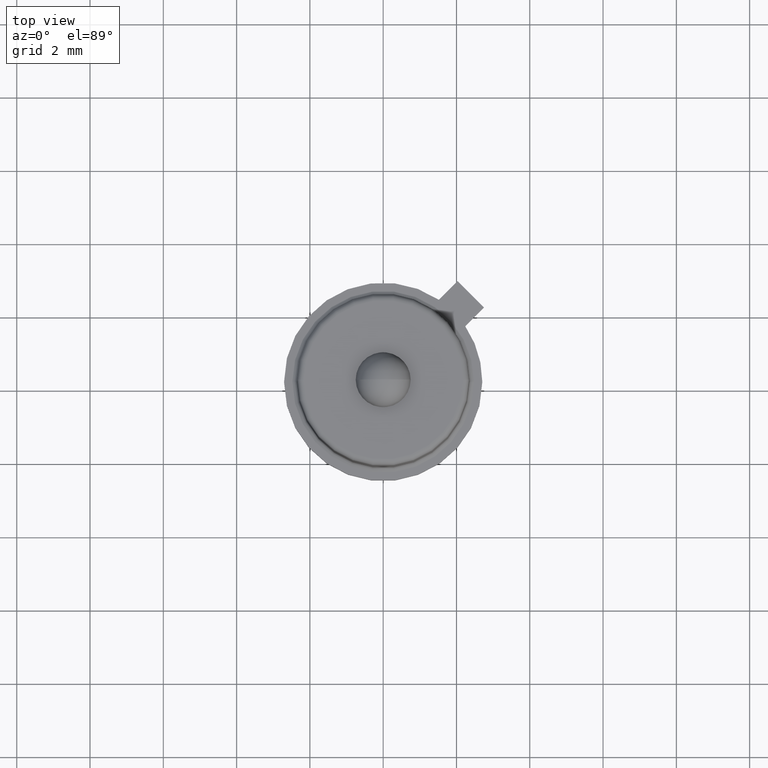
[diagram: clean part render]
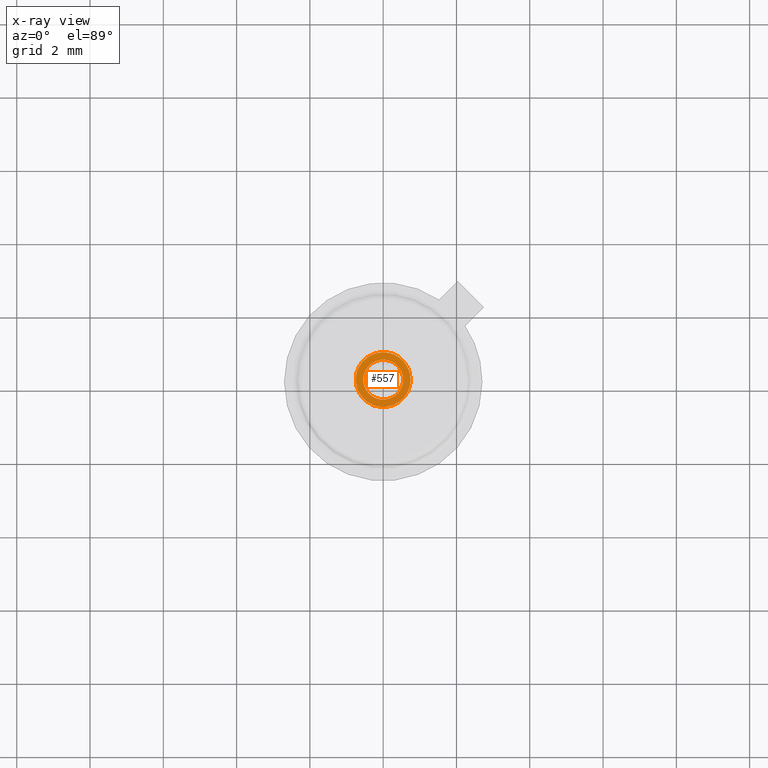
[diagram: x-ray — body ghosted, one internal face saturated and labeled with its STEP entity id]
A machine part, top view, then the same camera in x-ray: the body is ghosted and one INTERNAL B-rep face — a face not visible from any outside direction — is saturated and labeled: STEP entity #557.
In plain terms, the highlighted planar face has unit normal (-0, 0, -1).
Its self-contained STEP definition (entity closure, byte-faithful):
#145 = ORIENTED_EDGE ( 'NONE', *, *, #623, .T. ) ;
#146 = ORIENTED_EDGE ( 'NONE', *, *, #624, .T. ) ;
#147 = ORIENTED_EDGE ( 'NONE', *, *, #625, .F. ) ;
#148 = ORIENTED_EDGE ( 'NONE', *, *, #620, .F. ) ;
#197 = VERTEX_POINT ( 'NONE', #1478 ) ;
#200 = VERTEX_POINT ( 'NONE', #1480 ) ;
#201 = VERTEX_POINT ( 'NONE', #1463 ) ;
#202 = VERTEX_POINT ( 'NONE', #1553 ) ;
#247 = EDGE_LOOP ( 'NONE', ( #145, #146 ) ) ;
#251 = EDGE_LOOP ( 'NONE', ( #147, #148 ) ) ;
#316 = PLANE ( 'NONE',  #680 ) ;
#320 = CARTESIAN_POINT ( 'NONE',  ( -0.02141216404828733000, 0.0000000000000000000, 0.1479999959614064500 ) ) ;
#325 = DIRECTION ( 'NONE',  ( -1.822692633619053300E-032, 0.0000000000000000000, -1.000000000000000000 ) ) ;
#326 = DIRECTION ( 'NONE',  ( -1.000000000000000000, 0.0000000000000000000, 1.822692633619053300E-032 ) ) ;
#557 = ADVANCED_FACE ( 'NONE', ( #1448, #1461 ), #316, .T. ) ;
#620 = EDGE_CURVE ( 'NONE', #201, #197, #1289, .T. ) ;
#623 = EDGE_CURVE ( 'NONE', #200, #202, #1292, .T. ) ;
#624 = EDGE_CURVE ( 'NONE', #202, #200, #1293, .T. ) ;
#625 = EDGE_CURVE ( 'NONE', #197, #201, #1295, .T. ) ;
#680 = AXIS2_PLACEMENT_3D ( 'NONE', #320, #325, #326 ) ;
#951 = AXIS2_PLACEMENT_3D ( 'NONE', #1144, #1145, #1146 ) ;
#954 = AXIS2_PLACEMENT_3D ( 'NONE', #1153, #1154, #1155 ) ;
#955 = AXIS2_PLACEMENT_3D ( 'NONE', #1156, #1157, #1158 ) ;
#956 = AXIS2_PLACEMENT_3D ( 'NONE', #1161, #1162, #1163 ) ;
#1144 = CARTESIAN_POINT ( 'NONE',  ( -3.112074508886777000E-049, 0.0000000000000000000, 0.1479999959614064500 ) ) ;
#1145 = DIRECTION ( 'NONE',  ( -1.822692633619053300E-032, -0.0000000000000000000, -1.000000000000000000 ) ) ;
#1146 = DIRECTION ( 'NONE',  ( -1.000000000000000000, 0.0000000000000000000, 0.0000000000000000000 ) ) ;
#1153 = CARTESIAN_POINT ( 'NONE',  ( -9.800514888115017100E-066, 0.0000000000000000000, 0.1479999959614064800 ) ) ;
#1154 = DIRECTION ( 'NONE',  ( -1.822692633619053300E-032, -0.0000000000000000000, -1.000000000000000000 ) ) ;
#1155 = DIRECTION ( 'NONE',  ( -1.000000000000000000, 0.0000000000000000000, 0.0000000000000000000 ) ) ;
#1156 = CARTESIAN_POINT ( 'NONE',  ( -9.800514888115017100E-066, 0.0000000000000000000, 0.1479999959614064800 ) ) ;
#1157 = DIRECTION ( 'NONE',  ( -1.822692633619053300E-032, -0.0000000000000000000, -1.000000000000000000 ) ) ;
#1158 = DIRECTION ( 'NONE',  ( -1.000000000000000000, 0.0000000000000000000, 0.0000000000000000000 ) ) ;
#1161 = CARTESIAN_POINT ( 'NONE',  ( -3.112074508886777000E-049, 0.0000000000000000000, 0.1479999959614064500 ) ) ;
#1162 = DIRECTION ( 'NONE',  ( -1.822692633619053300E-032, -0.0000000000000000000, -1.000000000000000000 ) ) ;
#1163 = DIRECTION ( 'NONE',  ( -1.000000000000000000, 0.0000000000000000000, 0.0000000000000000000 ) ) ;
#1289 = CIRCLE ( 'NONE', #951, 0.02141216404828733000 ) ;
#1292 = CIRCLE ( 'NONE', #954, 0.02949999999999998500 ) ;
#1293 = CIRCLE ( 'NONE', #955, 0.02949999999999998500 ) ;
#1295 = CIRCLE ( 'NONE', #956, 0.02141216404828733000 ) ;
#1448 = FACE_OUTER_BOUND ( 'NONE', #247, .T. ) ;
#1461 = FACE_BOUND ( 'NONE', #251, .T. ) ;
#1463 = CARTESIAN_POINT ( 'NONE',  ( -0.02141216404828733000, -2.622233816455311600E-018, 0.1479999959614064500 ) ) ;
#1478 = CARTESIAN_POINT ( 'NONE',  ( 0.02141216404828733000, 0.0000000000000000000, 0.1479999959614064500 ) ) ;
#1480 = CARTESIAN_POINT ( 'NONE',  ( -0.02949999999999997800, 0.0000000000000000000, 0.1479999959614064800 ) ) ;
#1553 = CARTESIAN_POINT ( 'NONE',  ( 0.02949999999999997800, 3.612708057484689400E-018, 0.1479999959614064800 ) ) ;